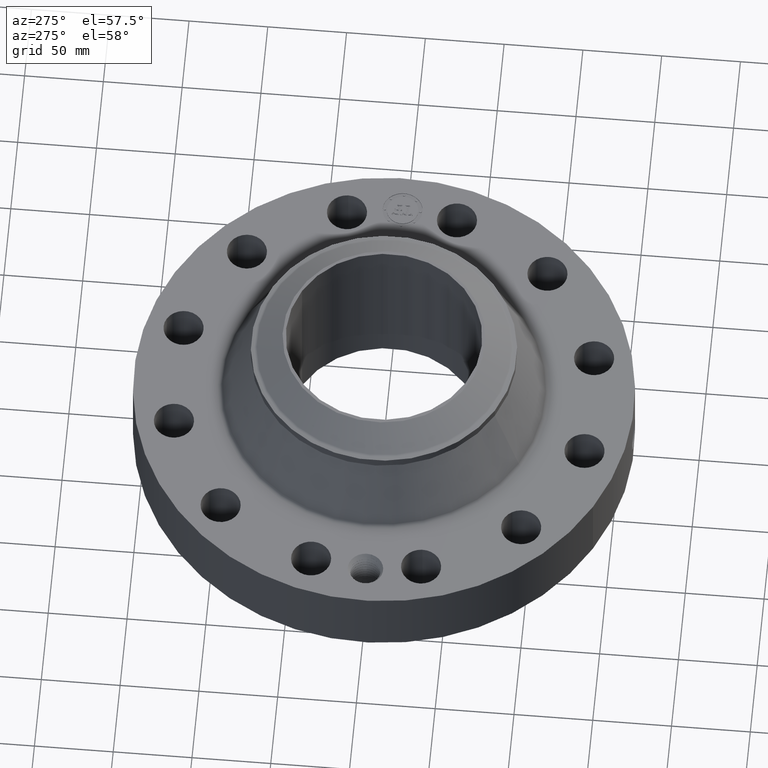
[diagram: clean part render]
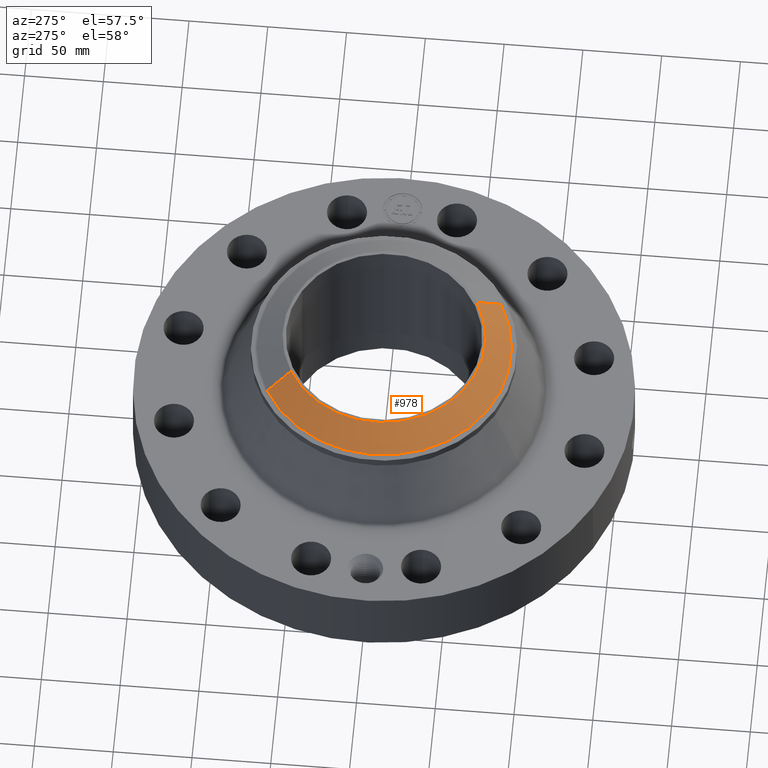
[diagram: same view with one face highlighted and labeled with its STEP entity id]
A machine part, auxiliary view. The second image highlights one B-rep face of the part: STEP entity #978.
In plain terms, the highlighted conical surface has half-angle 52.5 deg.
Its self-contained STEP definition (entity closure, byte-faithful):
#524=AXIS2_PLACEMENT_3D('Circle Axis2P3D',#522,#523,$) ;
#951=AXIS2_PLACEMENT_3D('Cone Axis2P3D',#948,#949,#950) ;
#962=AXIS2_PLACEMENT_3D('Circle Axis2P3D',#960,#961,$) ;
#517=CARTESIAN_POINT('Vertex',(1.21162347369,-2.21786189192,4.37200000002)) ;
#519=CARTESIAN_POINT('Vertex',(-1.21162347369,2.21786189192,4.37200000002)) ;
#522=CARTESIAN_POINT('Axis2P3D Location',(0.,0.,4.37200000002)) ;
#948=CARTESIAN_POINT('Axis2P3D Location',(0.,0.,4.37200000002)) ;
#953=CARTESIAN_POINT('Line Origine',(-1.36656477624,2.50148004383,4.12401437258)) ;
#957=CARTESIAN_POINT('Vertex',(-1.52150607879,2.78509819573,3.87602874515)) ;
#960=CARTESIAN_POINT('Axis2P3D Location',(0.,0.,3.87602874515)) ;
#964=CARTESIAN_POINT('Vertex',(1.52150607879,-2.78509819573,3.87602874515)) ;
#967=CARTESIAN_POINT('Line Origine',(1.36656477624,-2.50148004383,4.12401437258)) ;
#523=DIRECTION('Axis2P3D Direction',(0.,0.,-0.0393700787402)) ;
#949=DIRECTION('Axis2P3D Direction',(-0.,-0.,-0.0393700787402)) ;
#950=DIRECTION('Axis2P3D XDirection',(-0.0188750212049,0.0345504945626,0.)) ;
#954=DIRECTION('Vector Direction',(-0.014974561121,0.02741075027,-0.023966985394)) ;
#961=DIRECTION('Axis2P3D Direction',(0.,0.,-0.0393700787402)) ;
#968=DIRECTION('Vector Direction',(0.014974561121,-0.02741075027,-0.023966985394)) ;
#955=VECTOR('Line Direction',#954,0.0393700787402) ;
#969=VECTOR('Line Direction',#968,0.0393700787402) ;
#973=ORIENTED_EDGE('',*,*,#526,.F.) ;
#974=ORIENTED_EDGE('',*,*,#959,.T.) ;
#975=ORIENTED_EDGE('',*,*,#966,.T.) ;
#976=ORIENTED_EDGE('',*,*,#971,.F.) ;
#978=ADVANCED_FACE('PartBody',(#977),#952,.T.) ;
#525=CIRCLE('generated circle',#524,2.52724015749) ;
#963=CIRCLE('generated circle',#962,3.17360248104) ;
#952=CONICAL_SURFACE('Cone',#951,2.52724015749,0.916297857297) ;
#526=EDGE_CURVE('',#520,#518,#525,.F.) ;
#959=EDGE_CURVE('',#520,#958,#956,.T.) ;
#966=EDGE_CURVE('',#958,#965,#963,.F.) ;
#971=EDGE_CURVE('',#518,#965,#970,.T.) ;
#972=EDGE_LOOP('',(#973,#974,#975,#976)) ;
#977=FACE_OUTER_BOUND('',#972,.T.) ;
#956=LINE('Line',#953,#955) ;
#970=LINE('Line',#967,#969) ;
#518=VERTEX_POINT('',#517) ;
#520=VERTEX_POINT('',#519) ;
#958=VERTEX_POINT('',#957) ;
#965=VERTEX_POINT('',#964) ;